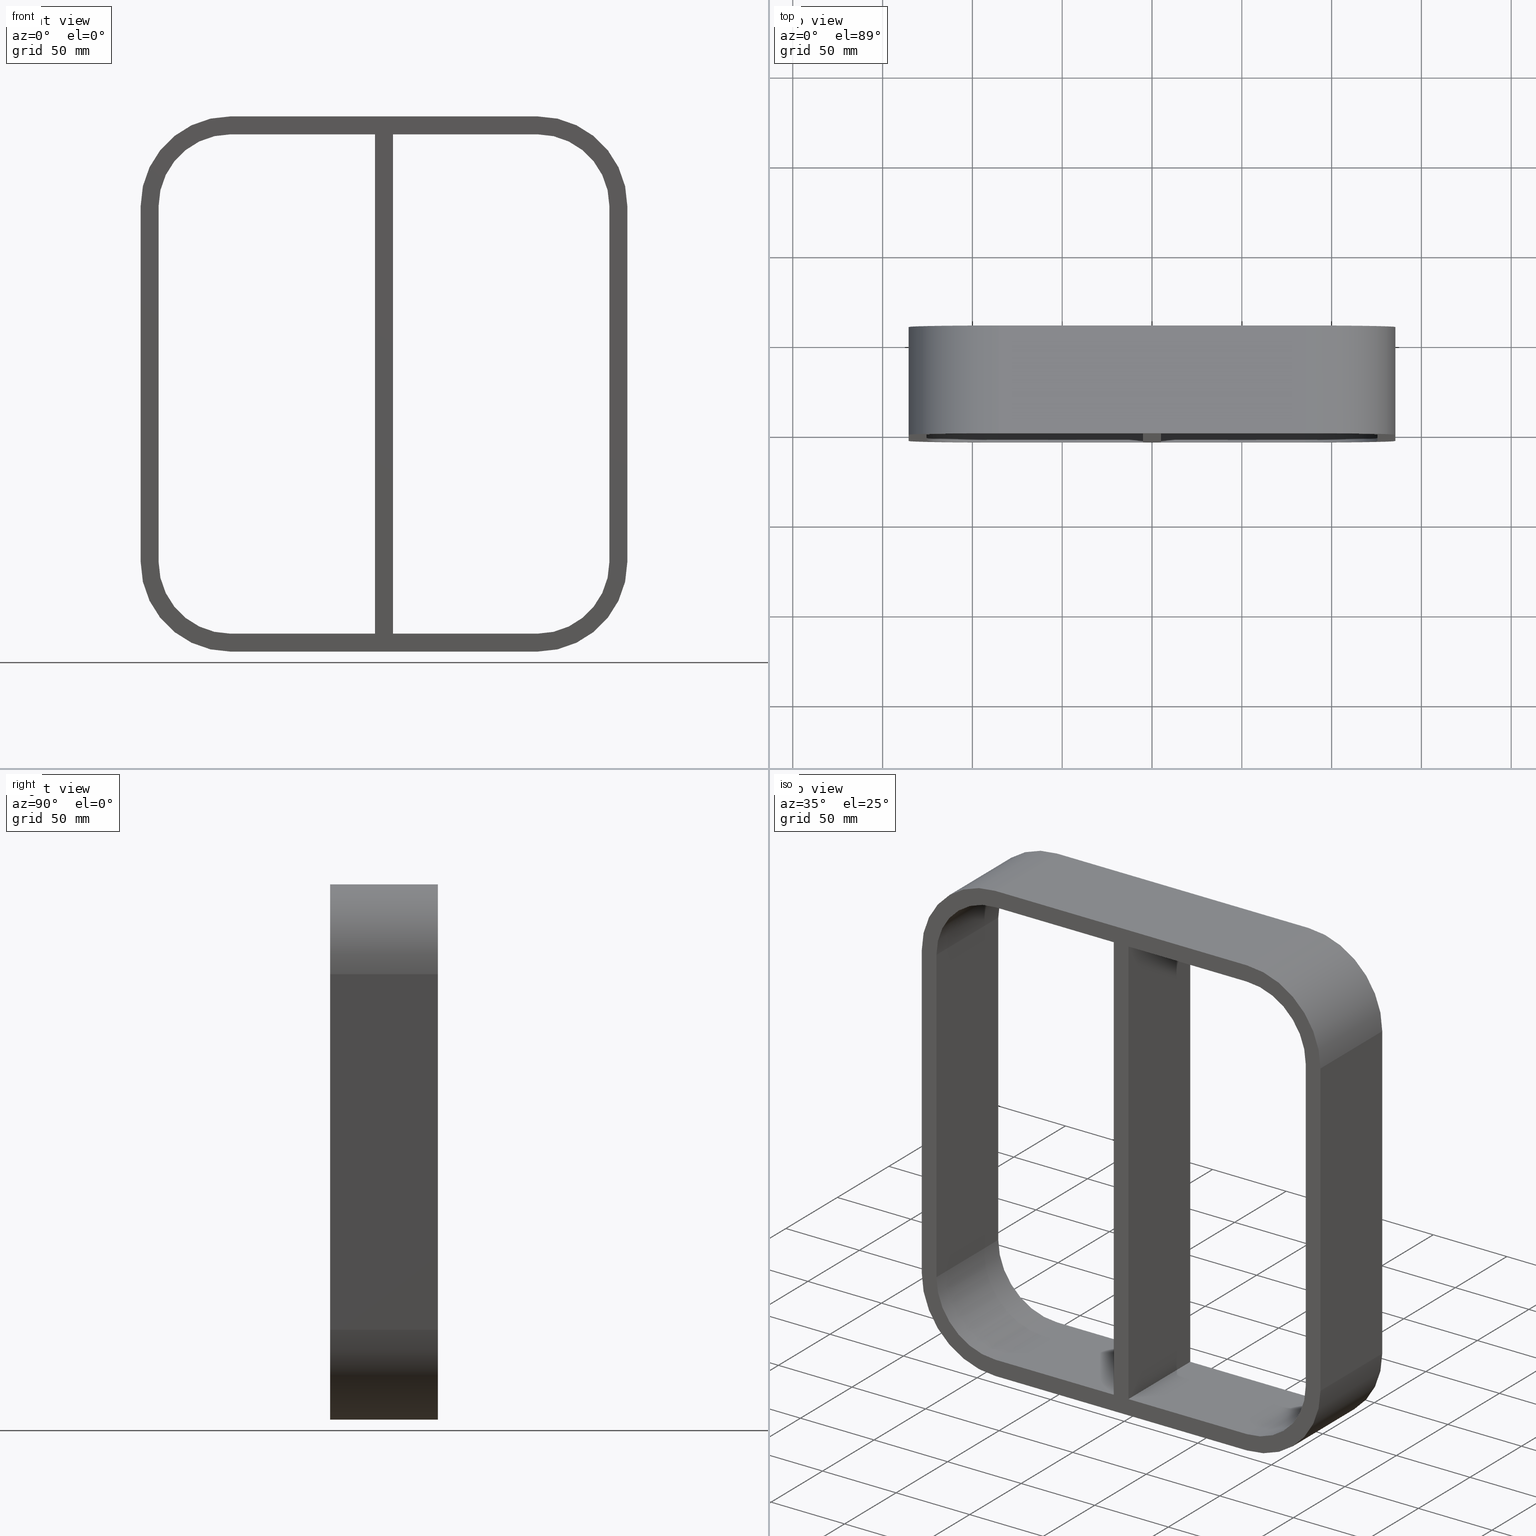
[diagram: canonical four-view strip — front | top / right | iso, engineering-drawing reading convention]
A machine part, canonical four-view strip (front | top / right | iso — engineering-drawing reading convention). The complete STEP part file that produces these views, byte-faithful:
ISO-10303-21;
HEADER;
/****************************************************************
 * Generated by software with PDElib inside                    *
 * PDElib Version v51a, created Wed 11/30/2011                  *
 * ITI Transcendata (http://www.transcendata.com/)              *
 ****************************************************************/
FILE_DESCRIPTION((''),'2;1');
FILE_NAME('N:\\Projects\\Ongoing_Projects\\12403 Transit Designer\\Product-data\\Product Data\\Transit designer Cad Generator\\CreatedFiles\\STEP\\SRCR40-8X2.stp','2014-10-31T13:07:12',(''),(''),'Autodesk Inventor 2013','Autodesk Inventor 2013','');
FILE_SCHEMA(('AUTOMOTIVE_DESIGN { 1 0 10303 214 1 1 1 1 }'));
ENDSEC;
DATA;
#5=APPLICATION_CONTEXT('automotive design');
#6=APPLICATION_PROTOCOL_DEFINITION('International Standard','automotive_design',2001,#5);
#7=PRODUCT_CONTEXT('',#5,'mechanical');
#8=PRODUCT('GH-ISO','GH-ISO',$,(#7));
#9=PRODUCT_RELATED_PRODUCT_CATEGORY('part',$,(#8));
#10=PRODUCT_DEFINITION_FORMATION('',$,#8);
#11=PRODUCT_DEFINITION_CONTEXT('part definition',#5,'design');
#12=PRODUCT_DEFINITION('',$,#10,#11);
#18=(NAMED_UNIT(*)PLANE_ANGLE_UNIT()SI_UNIT($,.RADIAN.));
#19=DIMENSIONAL_EXPONENTS(0.0,0.0,0.0,0.0,0.0,0.0,0.0);
#20=PLANE_ANGLE_MEASURE_WITH_UNIT(PLANE_ANGLE_MEASURE(0.0174532925),#18);
#24=(CONVERSION_BASED_UNIT('DEGREE',#20)NAMED_UNIT(#19)PLANE_ANGLE_UNIT());
#28=(NAMED_UNIT(*)SI_UNIT($,.STERADIAN.)SOLID_ANGLE_UNIT());
#32=(LENGTH_UNIT()NAMED_UNIT(*)SI_UNIT(.MILLI.,.METRE.));
#34=UNCERTAINTY_MEASURE_WITH_UNIT(LENGTH_MEASURE(0.01),#32,'DISTANCE_ACCURACY_VALUE','');
#36=(GEOMETRIC_REPRESENTATION_CONTEXT(3)GLOBAL_UNCERTAINTY_ASSIGNED_CONTEXT((#34))GLOBAL_UNIT_ASSIGNED_CONTEXT((#24,#28,#32))REPRESENTATION_CONTEXT('None','None'));
#37=AXIS2_PLACEMENT_3D('',#38,#39,#40);
#38=CARTESIAN_POINT('',(0.0,0.0,0.0));
#39=DIRECTION('',(0.0,0.0,1.0));
#40=DIRECTION('',(1.0,0.0,0.0));
#41=SHAPE_REPRESENTATION('',(#37),#36);
#42=PRODUCT_DEFINITION_SHAPE('','',#12);
#43=SHAPE_DEFINITION_REPRESENTATION(#42,#41);
#49=(NAMED_UNIT(*)PLANE_ANGLE_UNIT()SI_UNIT($,.RADIAN.));
#50=DIMENSIONAL_EXPONENTS(0.0,0.0,0.0,0.0,0.0,0.0,0.0);
#51=PLANE_ANGLE_MEASURE_WITH_UNIT(PLANE_ANGLE_MEASURE(0.0174532925),#49);
#55=(CONVERSION_BASED_UNIT('DEGREE',#51)NAMED_UNIT(#50)PLANE_ANGLE_UNIT());
#59=(NAMED_UNIT(*)SI_UNIT($,.STERADIAN.)SOLID_ANGLE_UNIT());
#63=(LENGTH_UNIT()NAMED_UNIT(*)SI_UNIT(.MILLI.,.METRE.));
#65=UNCERTAINTY_MEASURE_WITH_UNIT(LENGTH_MEASURE(0.000001),#63,'DISTANCE_ACCURACY_VALUE','');
#67=(GEOMETRIC_REPRESENTATION_CONTEXT(3)GLOBAL_UNCERTAINTY_ASSIGNED_CONTEXT((#65))GLOBAL_UNIT_ASSIGNED_CONTEXT((#55,#59,#63))REPRESENTATION_CONTEXT('','3D'));
#68=CARTESIAN_POINT('',(-5.000000000001439,-3.0,-139.0));
#69=DIRECTION('',(-1.0,0.0,0.0));
#70=DIRECTION('',(0.0,0.0,1.0));
#71=AXIS2_PLACEMENT_3D('',#68,#69,#70);
#72=PLANE('',#71);
#73=CARTESIAN_POINT('',(-5.000000000001439,-3.0,-139.0));
#74=VERTEX_POINT('',#73);
#75=CARTESIAN_POINT('',(-5.000000000001492,-3.0,139.0));
#76=VERTEX_POINT('',#75);
#77=CARTESIAN_POINT('',(-5.000000000001439,-3.0,-139.0));
#78=DIRECTION('',(0.0,0.0,1.0));
#79=VECTOR('',#78,278.0);
#80=LINE('',#77,#79);
#81=EDGE_CURVE('',#74,#76,#80,.T.);
#82=ORIENTED_EDGE('',*,*,#81,.T.);
#83=CARTESIAN_POINT('',(-5.000000000001492,57.0,139.0));
#84=VERTEX_POINT('',#83);
#85=CARTESIAN_POINT('',(-5.000000000001492,57.000000000000007,139.0));
#86=DIRECTION('',(0.0,-1.0,0.0));
#87=VECTOR('',#86,60.000000000000007);
#88=LINE('',#85,#87);
#89=EDGE_CURVE('',#84,#76,#88,.T.);
#90=ORIENTED_EDGE('',*,*,#89,.F.);
#91=CARTESIAN_POINT('',(-5.000000000001439,57.0,-139.0));
#92=VERTEX_POINT('',#91);
#93=CARTESIAN_POINT('',(-5.000000000001439,57.0,-139.0));
#94=DIRECTION('',(0.0,0.0,1.0));
#95=VECTOR('',#94,278.0);
#96=LINE('',#93,#95);
#97=EDGE_CURVE('',#92,#84,#96,.T.);
#98=ORIENTED_EDGE('',*,*,#97,.F.);
#99=CARTESIAN_POINT('',(-5.000000000001439,-3.0,-139.0));
#100=DIRECTION('',(0.0,1.0,0.0));
#101=VECTOR('',#100,60.000000000000007);
#102=LINE('',#99,#101);
#103=EDGE_CURVE('',#74,#92,#102,.T.);
#104=ORIENTED_EDGE('',*,*,#103,.F.);
#105=EDGE_LOOP('',(#82,#90,#98,#104));
#106=FACE_OUTER_BOUND('',#105,.T.);
#107=ADVANCED_FACE('',(#106),#72,.T.);
#108=CARTESIAN_POINT('',(5.0,-3.0,139.0));
#109=DIRECTION('',(1.0,0.0,0.0));
#110=DIRECTION('',(0.0,0.0,-1.0));
#111=AXIS2_PLACEMENT_3D('',#108,#109,#110);
#112=PLANE('',#111);
#113=CARTESIAN_POINT('',(5.0,-3.0,139.0));
#114=VERTEX_POINT('',#113);
#115=CARTESIAN_POINT('',(5.0,-3.0,-138.99999999998502));
#116=VERTEX_POINT('',#115);
#117=CARTESIAN_POINT('',(5.0,-3.0,139.0));
#118=DIRECTION('',(0.0,0.0,-1.0));
#119=VECTOR('',#118,277.99999999998499);
#120=LINE('',#117,#119);
#121=EDGE_CURVE('',#114,#116,#120,.T.);
#122=ORIENTED_EDGE('',*,*,#121,.T.);
#123=CARTESIAN_POINT('',(5.0,57.0,-138.99999999998502));
#124=VERTEX_POINT('',#123);
#125=CARTESIAN_POINT('',(5.0,57.000000000000007,-139.0));
#126=DIRECTION('',(0.0,-1.0,0.0));
#127=VECTOR('',#126,60.000000000000007);
#128=LINE('',#125,#127);
#129=EDGE_CURVE('',#124,#116,#128,.T.);
#130=ORIENTED_EDGE('',*,*,#129,.F.);
#131=CARTESIAN_POINT('',(5.0,57.0,139.0));
#132=VERTEX_POINT('',#131);
#133=CARTESIAN_POINT('',(5.0,57.0,139.0));
#134=DIRECTION('',(0.0,0.0,-1.0));
#135=VECTOR('',#134,277.99999999998499);
#136=LINE('',#133,#135);
#137=EDGE_CURVE('',#132,#124,#136,.T.);
#138=ORIENTED_EDGE('',*,*,#137,.F.);
#139=CARTESIAN_POINT('',(5.0,-3.0,139.0));
#140=DIRECTION('',(0.0,1.0,0.0));
#141=VECTOR('',#140,60.000000000000007);
#142=LINE('',#139,#141);
#143=EDGE_CURVE('',#114,#132,#142,.T.);
#144=ORIENTED_EDGE('',*,*,#143,.F.);
#145=EDGE_LOOP('',(#122,#130,#138,#144));
#146=FACE_OUTER_BOUND('',#145,.T.);
#147=ADVANCED_FACE('',(#146),#112,.T.);
#148=CARTESIAN_POINT('',(125.49999999999997,0.0,-139.0));
#149=DIRECTION('',(0.0,0.0,-1.0));
#150=DIRECTION('',(-1.0,0.0,0.0));
#151=AXIS2_PLACEMENT_3D('',#148,#149,#150);
#152=PLANE('',#151);
#153=ORIENTED_EDGE('',*,*,#103,.T.);
#154=CARTESIAN_POINT('',(-85.499999999999972,57.0,-139.0));
#155=VERTEX_POINT('',#154);
#156=CARTESIAN_POINT('',(-85.499999999999943,57.0,-139.0));
#157=DIRECTION('',(1.0,0.0,0.0));
#158=VECTOR('',#157,80.499999999998494);
#159=LINE('',#156,#158);
#160=EDGE_CURVE('',#155,#92,#159,.T.);
#161=ORIENTED_EDGE('',*,*,#160,.F.);
#162=CARTESIAN_POINT('',(-85.499999999999972,-3.0,-139.0));
#163=VERTEX_POINT('',#162);
#164=CARTESIAN_POINT('',(-85.499999999999972,-3.0,-139.0));
#165=DIRECTION('',(0.0,1.0,0.0));
#166=VECTOR('',#165,60.0);
#167=LINE('',#164,#166);
#168=EDGE_CURVE('',#163,#155,#167,.T.);
#169=ORIENTED_EDGE('',*,*,#168,.F.);
#170=CARTESIAN_POINT('',(-5.000000000001442,-3.0,-139.0));
#171=DIRECTION('',(-1.0,0.0,0.0));
#172=VECTOR('',#171,80.499999999998494);
#173=LINE('',#170,#172);
#174=EDGE_CURVE('',#74,#163,#173,.T.);
#175=ORIENTED_EDGE('',*,*,#174,.F.);
#176=EDGE_LOOP('',(#153,#161,#169,#175));
#177=FACE_OUTER_BOUND('',#176,.T.);
#178=ADVANCED_FACE('',(#177),#152,.F.);
#179=CARTESIAN_POINT('',(125.49999999999997,0.0,-139.0));
#180=DIRECTION('',(0.0,0.0,-1.0));
#181=DIRECTION('',(-1.0,0.0,0.0));
#182=AXIS2_PLACEMENT_3D('',#179,#180,#181);
#183=PLANE('',#182);
#184=ORIENTED_EDGE('',*,*,#129,.T.);
#185=CARTESIAN_POINT('',(85.499999999999972,-3.0,-139.0));
#186=VERTEX_POINT('',#185);
#187=CARTESIAN_POINT('',(85.499999999999972,-3.0,-139.0));
#188=DIRECTION('',(-1.0,0.0,0.0));
#189=VECTOR('',#188,80.499999999999972);
#190=LINE('',#187,#189);
#191=EDGE_CURVE('',#186,#116,#190,.T.);
#192=ORIENTED_EDGE('',*,*,#191,.F.);
#193=CARTESIAN_POINT('',(85.499999999999972,57.0,-139.0));
#194=VERTEX_POINT('',#193);
#195=CARTESIAN_POINT('',(85.499999999999972,57.0,-139.0));
#196=DIRECTION('',(0.0,-1.0,0.0));
#197=VECTOR('',#196,60.0);
#198=LINE('',#195,#197);
#199=EDGE_CURVE('',#194,#186,#198,.T.);
#200=ORIENTED_EDGE('',*,*,#199,.F.);
#201=CARTESIAN_POINT('',(5.0,57.0,-139.0));
#202=DIRECTION('',(1.0,0.0,0.0));
#203=VECTOR('',#202,80.499999999999972);
#204=LINE('',#201,#203);
#205=EDGE_CURVE('',#124,#194,#204,.T.);
#206=ORIENTED_EDGE('',*,*,#205,.F.);
#207=EDGE_LOOP('',(#184,#192,#200,#206));
#208=FACE_OUTER_BOUND('',#207,.T.);
#209=ADVANCED_FACE('',(#208),#183,.F.);
#210=CARTESIAN_POINT('',(-125.49999999999999,0.0,139.0));
#211=DIRECTION('',(0.0,0.0,1.0));
#212=DIRECTION('',(1.0,0.0,0.0));
#213=AXIS2_PLACEMENT_3D('',#210,#211,#212);
#214=PLANE('',#213);
#215=ORIENTED_EDGE('',*,*,#143,.T.);
#216=CARTESIAN_POINT('',(85.499999999999972,57.0,139.0));
#217=VERTEX_POINT('',#216);
#218=CARTESIAN_POINT('',(85.499999999999957,57.0,139.0));
#219=DIRECTION('',(-1.0,0.0,0.0));
#220=VECTOR('',#219,80.499999999999957);
#221=LINE('',#218,#220);
#222=EDGE_CURVE('',#217,#132,#221,.T.);
#223=ORIENTED_EDGE('',*,*,#222,.F.);
#224=CARTESIAN_POINT('',(85.499999999999972,-3.0,139.0));
#225=VERTEX_POINT('',#224);
#226=CARTESIAN_POINT('',(85.499999999999972,-3.0,139.0));
#227=DIRECTION('',(0.0,1.0,0.0));
#228=VECTOR('',#227,60.0);
#229=LINE('',#226,#228);
#230=EDGE_CURVE('',#225,#217,#229,.T.);
#231=ORIENTED_EDGE('',*,*,#230,.F.);
#232=CARTESIAN_POINT('',(5.0,-3.0,139.0));
#233=DIRECTION('',(1.0,0.0,0.0));
#234=VECTOR('',#233,80.499999999999957);
#235=LINE('',#232,#234);
#236=EDGE_CURVE('',#114,#225,#235,.T.);
#237=ORIENTED_EDGE('',*,*,#236,.F.);
#238=EDGE_LOOP('',(#215,#223,#231,#237));
#239=FACE_OUTER_BOUND('',#238,.T.);
#240=ADVANCED_FACE('',(#239),#214,.F.);
#241=CARTESIAN_POINT('',(-125.49999999999999,0.0,139.0));
#242=DIRECTION('',(0.0,0.0,1.0));
#243=DIRECTION('',(1.0,0.0,0.0));
#244=AXIS2_PLACEMENT_3D('',#241,#242,#243);
#245=PLANE('',#244);
#246=ORIENTED_EDGE('',*,*,#89,.T.);
#247=CARTESIAN_POINT('',(-85.499999999999986,-3.0,139.0));
#248=VERTEX_POINT('',#247);
#249=CARTESIAN_POINT('',(-85.499999999999986,-3.0,139.0));
#250=DIRECTION('',(1.0,0.0,0.0));
#251=VECTOR('',#250,80.499999999998494);
#252=LINE('',#249,#251);
#253=EDGE_CURVE('',#248,#76,#252,.T.);
#254=ORIENTED_EDGE('',*,*,#253,.F.);
#255=CARTESIAN_POINT('',(-85.499999999999986,57.0,139.0));
#256=VERTEX_POINT('',#255);
#257=CARTESIAN_POINT('',(-85.499999999999986,57.0,139.0));
#258=DIRECTION('',(0.0,-1.0,0.0));
#259=VECTOR('',#258,60.0);
#260=LINE('',#257,#259);
#261=EDGE_CURVE('',#256,#248,#260,.T.);
#262=ORIENTED_EDGE('',*,*,#261,.F.);
#263=CARTESIAN_POINT('',(-5.000000000001492,57.0,139.0));
#264=DIRECTION('',(-1.0,0.0,0.0));
#265=VECTOR('',#264,80.499999999998494);
#266=LINE('',#263,#265);
#267=EDGE_CURVE('',#84,#256,#266,.T.);
#268=ORIENTED_EDGE('',*,*,#267,.F.);
#269=EDGE_LOOP('',(#246,#254,#262,#268));
#270=FACE_OUTER_BOUND('',#269,.T.);
#271=ADVANCED_FACE('',(#270),#245,.F.);
#272=CARTESIAN_POINT('',(85.500000000000028,0.0,-98.999999999999986));
#273=DIRECTION('',(0.0,1.0,0.0));
#274=DIRECTION('',(0.707106781186547,0.0,-0.707106781186547));
#275=AXIS2_PLACEMENT_3D('',#272,#273,#274);
#276=CYLINDRICAL_SURFACE('',#275,49.999999999999993);
#277=CARTESIAN_POINT('',(85.500000000000028,57.0,-149.0));
#278=VERTEX_POINT('',#277);
#279=CARTESIAN_POINT('',(135.50000000000003,57.0,-98.999999999999986));
#280=VERTEX_POINT('',#279);
#281=CARTESIAN_POINT('',(85.500000000000028,57.0,-98.999999999999986));
#282=DIRECTION('',(0.0,-1.0,0.0));
#283=DIRECTION('',(0.707106781186547,0.0,-0.707106781186547));
#284=AXIS2_PLACEMENT_3D('',#281,#282,#283);
#285=CIRCLE('',#284,49.999999999999986);
#286=EDGE_CURVE('',#278,#280,#285,.T.);
#287=ORIENTED_EDGE('',*,*,#286,.T.);
#288=CARTESIAN_POINT('',(135.50000000000003,-3.0,-98.999999999999986));
#289=VERTEX_POINT('',#288);
#290=CARTESIAN_POINT('',(135.50000000000003,57.0,-98.999999999999986));
#291=DIRECTION('',(0.0,-1.0,0.0));
#292=VECTOR('',#291,60.0);
#293=LINE('',#290,#292);
#294=EDGE_CURVE('',#280,#289,#293,.T.);
#295=ORIENTED_EDGE('',*,*,#294,.T.);
#296=CARTESIAN_POINT('',(85.500000000000028,-3.0,-149.0));
#297=VERTEX_POINT('',#296);
#298=CARTESIAN_POINT('',(85.500000000000028,-3.0,-98.999999999999986));
#299=DIRECTION('',(0.0,1.0,0.0));
#300=DIRECTION('',(0.707106781186547,0.0,-0.707106781186547));
#301=AXIS2_PLACEMENT_3D('',#298,#299,#300);
#302=CIRCLE('',#301,49.999999999999986);
#303=EDGE_CURVE('',#289,#297,#302,.T.);
#304=ORIENTED_EDGE('',*,*,#303,.T.);
#305=CARTESIAN_POINT('',(85.500000000000028,-3.0,-149.0));
#306=DIRECTION('',(0.0,1.0,0.0));
#307=VECTOR('',#306,60.0);
#308=LINE('',#305,#307);
#309=EDGE_CURVE('',#297,#278,#308,.T.);
#310=ORIENTED_EDGE('',*,*,#309,.T.);
#311=EDGE_LOOP('',(#287,#295,#304,#310));
#312=FACE_OUTER_BOUND('',#311,.T.);
#313=ADVANCED_FACE('',(#312),#276,.T.);
#314=CARTESIAN_POINT('',(1.921525E-014,-3.0,0.0));
#315=DIRECTION('',(0.0,1.0,0.0));
#316=DIRECTION('',(0.0,0.0,1.0));
#317=AXIS2_PLACEMENT_3D('',#314,#315,#316);
#318=PLANE('',#317);
#319=ORIENTED_EDGE('',*,*,#303,.F.);
#320=CARTESIAN_POINT('',(135.50000000000003,-3.0,98.999999999999986));
#321=VERTEX_POINT('',#320);
#322=CARTESIAN_POINT('',(135.50000000000003,-3.0,-98.999999999999972));
#323=DIRECTION('',(0.0,0.0,1.0));
#324=VECTOR('',#323,197.99999999999997);
#325=LINE('',#322,#324);
#326=EDGE_CURVE('',#289,#321,#325,.T.);
#327=ORIENTED_EDGE('',*,*,#326,.T.);
#328=CARTESIAN_POINT('',(85.500000000000028,-3.0,149.0));
#329=VERTEX_POINT('',#328);
#330=CARTESIAN_POINT('',(85.500000000000028,-3.0,98.999999999999986));
#331=DIRECTION('',(0.0,1.0,0.0));
#332=DIRECTION('',(0.707106781186547,0.0,0.707106781186547));
#333=AXIS2_PLACEMENT_3D('',#330,#331,#332);
#334=CIRCLE('',#333,49.999999999999986);
#335=EDGE_CURVE('',#329,#321,#334,.T.);
#336=ORIENTED_EDGE('',*,*,#335,.F.);
#337=CARTESIAN_POINT('',(-85.499999999999986,-3.0,149.0));
#338=VERTEX_POINT('',#337);
#339=CARTESIAN_POINT('',(85.5,-3.0,149.0));
#340=DIRECTION('',(-1.0,0.0,0.0));
#341=VECTOR('',#340,171.0);
#342=LINE('',#339,#341);
#343=EDGE_CURVE('',#329,#338,#342,.T.);
#344=ORIENTED_EDGE('',*,*,#343,.T.);
#345=CARTESIAN_POINT('',(-135.5,-3.0,98.999999999999986));
#346=VERTEX_POINT('',#345);
#347=CARTESIAN_POINT('',(-85.499999999999986,-3.0,98.999999999999986));
#348=DIRECTION('',(0.0,1.0,0.0));
#349=DIRECTION('',(-0.707106781186547,0.0,0.707106781186547));
#350=AXIS2_PLACEMENT_3D('',#347,#348,#349);
#351=CIRCLE('',#350,49.999999999999986);
#352=EDGE_CURVE('',#346,#338,#351,.T.);
#353=ORIENTED_EDGE('',*,*,#352,.F.);
#354=CARTESIAN_POINT('',(-135.5,-3.0,-98.999999999999986));
#355=VERTEX_POINT('',#354);
#356=CARTESIAN_POINT('',(-135.5,-3.0,98.999999999999972));
#357=DIRECTION('',(0.0,0.0,-1.0));
#358=VECTOR('',#357,197.99999999999997);
#359=LINE('',#356,#358);
#360=EDGE_CURVE('',#346,#355,#359,.T.);
#361=ORIENTED_EDGE('',*,*,#360,.T.);
#362=CARTESIAN_POINT('',(-85.499999999999986,-3.0,-149.0));
#363=VERTEX_POINT('',#362);
#364=CARTESIAN_POINT('',(-85.499999999999986,-3.0,-98.999999999999986));
#365=DIRECTION('',(0.0,1.0,0.0));
#366=DIRECTION('',(-0.707106781186547,0.0,-0.707106781186547));
#367=AXIS2_PLACEMENT_3D('',#364,#365,#366);
#368=CIRCLE('',#367,49.999999999999986);
#369=EDGE_CURVE('',#363,#355,#368,.T.);
#370=ORIENTED_EDGE('',*,*,#369,.F.);
#371=CARTESIAN_POINT('',(-85.499999999999972,-3.0,-149.0));
#372=DIRECTION('',(1.0,0.0,0.0));
#373=VECTOR('',#372,171.0);
#374=LINE('',#371,#373);
#375=EDGE_CURVE('',#363,#297,#374,.T.);
#376=ORIENTED_EDGE('',*,*,#375,.T.);
#377=EDGE_LOOP('',(#319,#327,#336,#344,#353,#361,#370,#376));
#378=FACE_OUTER_BOUND('',#377,.T.);
#379=ORIENTED_EDGE('',*,*,#174,.T.);
#380=CARTESIAN_POINT('',(-125.49999999999999,-3.0,-98.999999999999986));
#381=VERTEX_POINT('',#380);
#382=CARTESIAN_POINT('',(-85.499999999999972,-3.0,-98.999999999999986));
#383=DIRECTION('',(0.0,-1.0,0.0));
#384=DIRECTION('',(-0.707106781186547,0.0,-0.707106781186547));
#385=AXIS2_PLACEMENT_3D('',#382,#383,#384);
#386=CIRCLE('',#385,39.999999999999993);
#387=EDGE_CURVE('',#381,#163,#386,.T.);
#388=ORIENTED_EDGE('',*,*,#387,.F.);
#389=CARTESIAN_POINT('',(-125.49999999999999,-3.0,98.999999999999986));
#390=VERTEX_POINT('',#389);
#391=CARTESIAN_POINT('',(-125.49999999999999,-3.0,-99.0));
#392=DIRECTION('',(0.0,0.0,1.0));
#393=VECTOR('',#392,197.99999999999997);
#394=LINE('',#391,#393);
#395=EDGE_CURVE('',#381,#390,#394,.T.);
#396=ORIENTED_EDGE('',*,*,#395,.T.);
#397=CARTESIAN_POINT('',(-85.499999999999986,-3.0,98.999999999999986));
#398=DIRECTION('',(0.0,-1.0,0.0));
#399=DIRECTION('',(-0.707106781186547,0.0,0.707106781186547));
#400=AXIS2_PLACEMENT_3D('',#397,#398,#399);
#401=CIRCLE('',#400,39.999999999999993);
#402=EDGE_CURVE('',#248,#390,#401,.T.);
#403=ORIENTED_EDGE('',*,*,#402,.F.);
#404=ORIENTED_EDGE('',*,*,#253,.T.);
#405=ORIENTED_EDGE('',*,*,#81,.F.);
#406=EDGE_LOOP('',(#379,#388,#396,#403,#404,#405));
#407=FACE_BOUND('',#406,.T.);
#408=ORIENTED_EDGE('',*,*,#121,.F.);
#409=ORIENTED_EDGE('',*,*,#236,.T.);
#410=CARTESIAN_POINT('',(125.49999999999997,-3.0,98.999999999999986));
#411=VERTEX_POINT('',#410);
#412=CARTESIAN_POINT('',(85.499999999999972,-3.0,98.999999999999986));
#413=DIRECTION('',(0.0,-1.0,0.0));
#414=DIRECTION('',(0.707106781186547,0.0,0.707106781186547));
#415=AXIS2_PLACEMENT_3D('',#412,#413,#414);
#416=CIRCLE('',#415,39.999999999999993);
#417=EDGE_CURVE('',#411,#225,#416,.T.);
#418=ORIENTED_EDGE('',*,*,#417,.F.);
#419=CARTESIAN_POINT('',(125.49999999999997,-3.0,-98.999999999999986));
#420=VERTEX_POINT('',#419);
#421=CARTESIAN_POINT('',(125.49999999999997,-3.0,99.0));
#422=DIRECTION('',(0.0,0.0,-1.0));
#423=VECTOR('',#422,197.99999999999997);
#424=LINE('',#421,#423);
#425=EDGE_CURVE('',#411,#420,#424,.T.);
#426=ORIENTED_EDGE('',*,*,#425,.T.);
#427=CARTESIAN_POINT('',(85.499999999999972,-3.0,-98.999999999999986));
#428=DIRECTION('',(0.0,-1.0,0.0));
#429=DIRECTION('',(0.707106781186547,0.0,-0.707106781186547));
#430=AXIS2_PLACEMENT_3D('',#427,#428,#429);
#431=CIRCLE('',#430,39.999999999999993);
#432=EDGE_CURVE('',#186,#420,#431,.T.);
#433=ORIENTED_EDGE('',*,*,#432,.F.);
#434=ORIENTED_EDGE('',*,*,#191,.T.);
#435=EDGE_LOOP('',(#408,#409,#418,#426,#433,#434));
#436=FACE_BOUND('',#435,.T.);
#437=ADVANCED_FACE('',(#378,#407,#436),#318,.F.);
#438=CARTESIAN_POINT('',(135.50000000000003,0.0,149.0));
#439=DIRECTION('',(1.0,0.0,0.0));
#440=DIRECTION('',(0.0,0.0,-1.0));
#441=AXIS2_PLACEMENT_3D('',#438,#439,#440);
#442=PLANE('',#441);
#443=ORIENTED_EDGE('',*,*,#294,.F.);
#444=CARTESIAN_POINT('',(135.50000000000003,57.0,98.999999999999986));
#445=VERTEX_POINT('',#444);
#446=CARTESIAN_POINT('',(135.50000000000003,57.0,99.0));
#447=DIRECTION('',(0.0,0.0,-1.0));
#448=VECTOR('',#447,197.99999999999997);
#449=LINE('',#446,#448);
#450=EDGE_CURVE('',#445,#280,#449,.T.);
#451=ORIENTED_EDGE('',*,*,#450,.F.);
#452=CARTESIAN_POINT('',(135.50000000000003,-3.0,98.999999999999986));
#453=DIRECTION('',(0.0,1.0,0.0));
#454=VECTOR('',#453,60.0);
#455=LINE('',#452,#454);
#456=EDGE_CURVE('',#321,#445,#455,.T.);
#457=ORIENTED_EDGE('',*,*,#456,.F.);
#458=ORIENTED_EDGE('',*,*,#326,.F.);
#459=EDGE_LOOP('',(#443,#451,#457,#458));
#460=FACE_OUTER_BOUND('',#459,.T.);
#461=ADVANCED_FACE('',(#460),#442,.T.);
#462=CARTESIAN_POINT('',(85.500000000000028,0.0,98.999999999999986));
#463=DIRECTION('',(0.0,-1.0,0.0));
#464=DIRECTION('',(0.707106781186547,0.0,0.707106781186547));
#465=AXIS2_PLACEMENT_3D('',#462,#463,#464);
#466=CYLINDRICAL_SURFACE('',#465,49.999999999999993);
#467=ORIENTED_EDGE('',*,*,#335,.T.);
#468=ORIENTED_EDGE('',*,*,#456,.T.);
#469=CARTESIAN_POINT('',(85.500000000000028,57.0,149.0));
#470=VERTEX_POINT('',#469);
#471=CARTESIAN_POINT('',(85.500000000000028,57.0,98.999999999999986));
#472=DIRECTION('',(0.0,-1.0,0.0));
#473=DIRECTION('',(0.707106781186547,0.0,0.707106781186547));
#474=AXIS2_PLACEMENT_3D('',#471,#472,#473);
#475=CIRCLE('',#474,49.999999999999986);
#476=EDGE_CURVE('',#445,#470,#475,.T.);
#477=ORIENTED_EDGE('',*,*,#476,.T.);
#478=CARTESIAN_POINT('',(85.500000000000028,57.0,149.0));
#479=DIRECTION('',(0.0,-1.0,0.0));
#480=VECTOR('',#479,60.0);
#481=LINE('',#478,#480);
#482=EDGE_CURVE('',#470,#329,#481,.T.);
#483=ORIENTED_EDGE('',*,*,#482,.T.);
#484=EDGE_LOOP('',(#467,#468,#477,#483));
#485=FACE_OUTER_BOUND('',#484,.T.);
#486=ADVANCED_FACE('',(#485),#466,.T.);
#487=CARTESIAN_POINT('',(-85.499999999999986,0.0,-98.999999999999986));
#488=DIRECTION('',(0.0,1.0,0.0));
#489=DIRECTION('',(-0.707106781186547,0.0,-0.707106781186547));
#490=AXIS2_PLACEMENT_3D('',#487,#488,#489);
#491=CYLINDRICAL_SURFACE('',#490,49.999999999999993);
#492=CARTESIAN_POINT('',(-135.5,57.0,-98.999999999999986));
#493=VERTEX_POINT('',#492);
#494=CARTESIAN_POINT('',(-85.499999999999986,57.0,-149.0));
#495=VERTEX_POINT('',#494);
#496=CARTESIAN_POINT('',(-85.499999999999986,57.0,-98.999999999999986));
#497=DIRECTION('',(0.0,-1.0,0.0));
#498=DIRECTION('',(-0.707106781186547,0.0,-0.707106781186547));
#499=AXIS2_PLACEMENT_3D('',#496,#497,#498);
#500=CIRCLE('',#499,49.999999999999986);
#501=EDGE_CURVE('',#493,#495,#500,.T.);
#502=ORIENTED_EDGE('',*,*,#501,.T.);
#503=CARTESIAN_POINT('',(-85.499999999999986,57.0,-149.0));
#504=DIRECTION('',(0.0,-1.0,0.0));
#505=VECTOR('',#504,60.0);
#506=LINE('',#503,#505);
#507=EDGE_CURVE('',#495,#363,#506,.T.);
#508=ORIENTED_EDGE('',*,*,#507,.T.);
#509=ORIENTED_EDGE('',*,*,#369,.T.);
#510=CARTESIAN_POINT('',(-135.5,-3.0,-98.999999999999986));
#511=DIRECTION('',(0.0,1.0,0.0));
#512=VECTOR('',#511,60.0);
#513=LINE('',#510,#512);
#514=EDGE_CURVE('',#355,#493,#513,.T.);
#515=ORIENTED_EDGE('',*,*,#514,.T.);
#516=EDGE_LOOP('',(#502,#508,#509,#515));
#517=FACE_OUTER_BOUND('',#516,.T.);
#518=ADVANCED_FACE('',(#517),#491,.T.);
#519=CARTESIAN_POINT('',(-135.5,0.0,-149.0));
#520=DIRECTION('',(-1.0,0.0,0.0));
#521=DIRECTION('',(0.0,0.0,1.0));
#522=AXIS2_PLACEMENT_3D('',#519,#520,#521);
#523=PLANE('',#522);
#524=ORIENTED_EDGE('',*,*,#514,.F.);
#525=ORIENTED_EDGE('',*,*,#360,.F.);
#526=CARTESIAN_POINT('',(-135.5,57.0,98.999999999999986));
#527=VERTEX_POINT('',#526);
#528=CARTESIAN_POINT('',(-135.5,57.0,98.999999999999986));
#529=DIRECTION('',(0.0,-1.0,0.0));
#530=VECTOR('',#529,60.0);
#531=LINE('',#528,#530);
#532=EDGE_CURVE('',#527,#346,#531,.T.);
#533=ORIENTED_EDGE('',*,*,#532,.F.);
#534=CARTESIAN_POINT('',(-135.5,57.0,-99.0));
#535=DIRECTION('',(0.0,0.0,1.0));
#536=VECTOR('',#535,197.99999999999997);
#537=LINE('',#534,#536);
#538=EDGE_CURVE('',#493,#527,#537,.T.);
#539=ORIENTED_EDGE('',*,*,#538,.F.);
#540=EDGE_LOOP('',(#524,#525,#533,#539));
#541=FACE_OUTER_BOUND('',#540,.T.);
#542=ADVANCED_FACE('',(#541),#523,.T.);
#543=CARTESIAN_POINT('',(-85.499999999999986,0.0,98.999999999999986));
#544=DIRECTION('',(0.0,1.0,0.0));
#545=DIRECTION('',(-0.707106781186547,0.0,0.707106781186547));
#546=AXIS2_PLACEMENT_3D('',#543,#544,#545);
#547=CYLINDRICAL_SURFACE('',#546,49.999999999999993);
#548=CARTESIAN_POINT('',(-85.499999999999986,57.0,149.0));
#549=VERTEX_POINT('',#548);
#550=CARTESIAN_POINT('',(-85.499999999999986,57.0,98.999999999999986));
#551=DIRECTION('',(0.0,-1.0,0.0));
#552=DIRECTION('',(-0.707106781186547,0.0,0.707106781186547));
#553=AXIS2_PLACEMENT_3D('',#550,#551,#552);
#554=CIRCLE('',#553,49.999999999999986);
#555=EDGE_CURVE('',#549,#527,#554,.T.);
#556=ORIENTED_EDGE('',*,*,#555,.T.);
#557=ORIENTED_EDGE('',*,*,#532,.T.);
#558=ORIENTED_EDGE('',*,*,#352,.T.);
#559=CARTESIAN_POINT('',(-85.499999999999986,-3.0,149.0));
#560=DIRECTION('',(0.0,1.0,0.0));
#561=VECTOR('',#560,60.0);
#562=LINE('',#559,#561);
#563=EDGE_CURVE('',#338,#549,#562,.T.);
#564=ORIENTED_EDGE('',*,*,#563,.T.);
#565=EDGE_LOOP('',(#556,#557,#558,#564));
#566=FACE_OUTER_BOUND('',#565,.T.);
#567=ADVANCED_FACE('',(#566),#547,.T.);
#568=CARTESIAN_POINT('',(-135.5,0.0,149.0));
#569=DIRECTION('',(0.0,0.0,1.0));
#570=DIRECTION('',(1.0,0.0,0.0));
#571=AXIS2_PLACEMENT_3D('',#568,#569,#570);
#572=PLANE('',#571);
#573=ORIENTED_EDGE('',*,*,#482,.F.);
#574=CARTESIAN_POINT('',(-85.5,57.0,149.0));
#575=DIRECTION('',(1.0,0.0,0.0));
#576=VECTOR('',#575,171.0);
#577=LINE('',#574,#576);
#578=EDGE_CURVE('',#549,#470,#577,.T.);
#579=ORIENTED_EDGE('',*,*,#578,.F.);
#580=ORIENTED_EDGE('',*,*,#563,.F.);
#581=ORIENTED_EDGE('',*,*,#343,.F.);
#582=EDGE_LOOP('',(#573,#579,#580,#581));
#583=FACE_OUTER_BOUND('',#582,.T.);
#584=ADVANCED_FACE('',(#583),#572,.T.);
#585=CARTESIAN_POINT('',(-85.499999999999986,0.0,98.999999999999986));
#586=DIRECTION('',(0.0,1.0,0.0));
#587=DIRECTION('',(-0.707106781186547,0.0,0.707106781186547));
#588=AXIS2_PLACEMENT_3D('',#585,#586,#587);
#589=CYLINDRICAL_SURFACE('',#588,40.0);
#590=ORIENTED_EDGE('',*,*,#402,.T.);
#591=CARTESIAN_POINT('',(-125.49999999999999,57.0,98.999999999999986));
#592=VERTEX_POINT('',#591);
#593=CARTESIAN_POINT('',(-125.49999999999999,-3.0,98.999999999999986));
#594=DIRECTION('',(0.0,1.0,0.0));
#595=VECTOR('',#594,60.0);
#596=LINE('',#593,#595);
#597=EDGE_CURVE('',#390,#592,#596,.T.);
#598=ORIENTED_EDGE('',*,*,#597,.T.);
#599=CARTESIAN_POINT('',(-85.499999999999986,57.0,98.999999999999986));
#600=DIRECTION('',(0.0,1.0,0.0));
#601=DIRECTION('',(-0.707106781186547,0.0,0.707106781186547));
#602=AXIS2_PLACEMENT_3D('',#599,#600,#601);
#603=CIRCLE('',#602,39.999999999999993);
#604=EDGE_CURVE('',#592,#256,#603,.T.);
#605=ORIENTED_EDGE('',*,*,#604,.T.);
#606=ORIENTED_EDGE('',*,*,#261,.T.);
#607=EDGE_LOOP('',(#590,#598,#605,#606));
#608=FACE_OUTER_BOUND('',#607,.T.);
#609=ADVANCED_FACE('',(#608),#589,.F.);
#610=CARTESIAN_POINT('',(-125.49999999999999,0.0,-139.0));
#611=DIRECTION('',(-1.0,0.0,0.0));
#612=DIRECTION('',(0.0,0.0,1.0));
#613=AXIS2_PLACEMENT_3D('',#610,#611,#612);
#614=PLANE('',#613);
#615=ORIENTED_EDGE('',*,*,#597,.F.);
#616=ORIENTED_EDGE('',*,*,#395,.F.);
#617=CARTESIAN_POINT('',(-125.49999999999999,57.0,-98.999999999999986));
#618=VERTEX_POINT('',#617);
#619=CARTESIAN_POINT('',(-125.49999999999999,57.0,-98.999999999999986));
#620=DIRECTION('',(0.0,-1.0,0.0));
#621=VECTOR('',#620,60.0);
#622=LINE('',#619,#621);
#623=EDGE_CURVE('',#618,#381,#622,.T.);
#624=ORIENTED_EDGE('',*,*,#623,.F.);
#625=CARTESIAN_POINT('',(-125.49999999999999,57.0,98.999999999999972));
#626=DIRECTION('',(0.0,0.0,-1.0));
#627=VECTOR('',#626,197.99999999999997);
#628=LINE('',#625,#627);
#629=EDGE_CURVE('',#592,#618,#628,.T.);
#630=ORIENTED_EDGE('',*,*,#629,.F.);
#631=EDGE_LOOP('',(#615,#616,#624,#630));
#632=FACE_OUTER_BOUND('',#631,.T.);
#633=ADVANCED_FACE('',(#632),#614,.F.);
#634=CARTESIAN_POINT('',(85.499999999999972,0.0,98.999999999999986));
#635=DIRECTION('',(0.0,1.0,0.0));
#636=DIRECTION('',(0.707106781186547,0.0,0.707106781186547));
#637=AXIS2_PLACEMENT_3D('',#634,#635,#636);
#638=CYLINDRICAL_SURFACE('',#637,40.0);
#639=ORIENTED_EDGE('',*,*,#417,.T.);
#640=ORIENTED_EDGE('',*,*,#230,.T.);
#641=CARTESIAN_POINT('',(125.49999999999997,57.0,98.999999999999986));
#642=VERTEX_POINT('',#641);
#643=CARTESIAN_POINT('',(85.499999999999972,57.0,98.999999999999986));
#644=DIRECTION('',(0.0,1.0,0.0));
#645=DIRECTION('',(0.707106781186547,0.0,0.707106781186547));
#646=AXIS2_PLACEMENT_3D('',#643,#644,#645);
#647=CIRCLE('',#646,39.999999999999993);
#648=EDGE_CURVE('',#217,#642,#647,.T.);
#649=ORIENTED_EDGE('',*,*,#648,.T.);
#650=CARTESIAN_POINT('',(125.49999999999997,57.0,98.999999999999986));
#651=DIRECTION('',(0.0,-1.0,0.0));
#652=VECTOR('',#651,60.0);
#653=LINE('',#650,#652);
#654=EDGE_CURVE('',#642,#411,#653,.T.);
#655=ORIENTED_EDGE('',*,*,#654,.T.);
#656=EDGE_LOOP('',(#639,#640,#649,#655));
#657=FACE_OUTER_BOUND('',#656,.T.);
#658=ADVANCED_FACE('',(#657),#638,.F.);
#659=CARTESIAN_POINT('',(-85.499999999999972,0.0,-98.999999999999986));
#660=DIRECTION('',(0.0,1.0,0.0));
#661=DIRECTION('',(-0.707106781186547,0.0,-0.707106781186547));
#662=AXIS2_PLACEMENT_3D('',#659,#660,#661);
#663=CYLINDRICAL_SURFACE('',#662,40.0);
#664=ORIENTED_EDGE('',*,*,#387,.T.);
#665=ORIENTED_EDGE('',*,*,#168,.T.);
#666=CARTESIAN_POINT('',(-85.499999999999972,57.0,-98.999999999999986));
#667=DIRECTION('',(0.0,1.0,0.0));
#668=DIRECTION('',(-0.707106781186547,0.0,-0.707106781186547));
#669=AXIS2_PLACEMENT_3D('',#666,#667,#668);
#670=CIRCLE('',#669,39.999999999999993);
#671=EDGE_CURVE('',#155,#618,#670,.T.);
#672=ORIENTED_EDGE('',*,*,#671,.T.);
#673=ORIENTED_EDGE('',*,*,#623,.T.);
#674=EDGE_LOOP('',(#664,#665,#672,#673));
#675=FACE_OUTER_BOUND('',#674,.T.);
#676=ADVANCED_FACE('',(#675),#663,.F.);
#677=CARTESIAN_POINT('',(85.499999999999972,0.0,-98.999999999999986));
#678=DIRECTION('',(0.0,-1.0,0.0));
#679=DIRECTION('',(0.707106781186547,0.0,-0.707106781186547));
#680=AXIS2_PLACEMENT_3D('',#677,#678,#679);
#681=CYLINDRICAL_SURFACE('',#680,40.0);
#682=CARTESIAN_POINT('',(125.49999999999997,57.0,-98.999999999999986));
#683=VERTEX_POINT('',#682);
#684=CARTESIAN_POINT('',(85.499999999999972,57.0,-98.999999999999986));
#685=DIRECTION('',(0.0,1.0,0.0));
#686=DIRECTION('',(0.707106781186547,0.0,-0.707106781186547));
#687=AXIS2_PLACEMENT_3D('',#684,#685,#686);
#688=CIRCLE('',#687,39.999999999999993);
#689=EDGE_CURVE('',#683,#194,#688,.T.);
#690=ORIENTED_EDGE('',*,*,#689,.T.);
#691=ORIENTED_EDGE('',*,*,#199,.T.);
#692=ORIENTED_EDGE('',*,*,#432,.T.);
#693=CARTESIAN_POINT('',(125.49999999999997,-3.0,-98.999999999999986));
#694=DIRECTION('',(0.0,1.0,0.0));
#695=VECTOR('',#694,60.0);
#696=LINE('',#693,#695);
#697=EDGE_CURVE('',#420,#683,#696,.T.);
#698=ORIENTED_EDGE('',*,*,#697,.T.);
#699=EDGE_LOOP('',(#690,#691,#692,#698));
#700=FACE_OUTER_BOUND('',#699,.T.);
#701=ADVANCED_FACE('',(#700),#681,.F.);
#702=CARTESIAN_POINT('',(125.49999999999997,0.0,139.0));
#703=DIRECTION('',(1.0,0.0,0.0));
#704=DIRECTION('',(0.0,0.0,-1.0));
#705=AXIS2_PLACEMENT_3D('',#702,#703,#704);
#706=PLANE('',#705);
#707=ORIENTED_EDGE('',*,*,#654,.F.);
#708=CARTESIAN_POINT('',(125.49999999999997,57.0,-98.999999999999972));
#709=DIRECTION('',(0.0,0.0,1.0));
#710=VECTOR('',#709,197.99999999999997);
#711=LINE('',#708,#710);
#712=EDGE_CURVE('',#683,#642,#711,.T.);
#713=ORIENTED_EDGE('',*,*,#712,.F.);
#714=ORIENTED_EDGE('',*,*,#697,.F.);
#715=ORIENTED_EDGE('',*,*,#425,.F.);
#716=EDGE_LOOP('',(#707,#713,#714,#715));
#717=FACE_OUTER_BOUND('',#716,.T.);
#718=ADVANCED_FACE('',(#717),#706,.F.);
#719=CARTESIAN_POINT('',(135.50000000000003,0.0,-149.0));
#720=DIRECTION('',(0.0,0.0,-1.0));
#721=DIRECTION('',(-1.0,0.0,0.0));
#722=AXIS2_PLACEMENT_3D('',#719,#720,#721);
#723=PLANE('',#722);
#724=ORIENTED_EDGE('',*,*,#309,.F.);
#725=ORIENTED_EDGE('',*,*,#375,.F.);
#726=ORIENTED_EDGE('',*,*,#507,.F.);
#727=CARTESIAN_POINT('',(85.500000000000028,57.0,-149.0));
#728=DIRECTION('',(-1.0,0.0,0.0));
#729=VECTOR('',#728,171.0);
#730=LINE('',#727,#729);
#731=EDGE_CURVE('',#278,#495,#730,.T.);
#732=ORIENTED_EDGE('',*,*,#731,.F.);
#733=EDGE_LOOP('',(#724,#725,#726,#732));
#734=FACE_OUTER_BOUND('',#733,.T.);
#735=ADVANCED_FACE('',(#734),#723,.T.);
#736=CARTESIAN_POINT('',(1.921525E-014,57.0,0.0));
#737=DIRECTION('',(0.0,1.0,0.0));
#738=DIRECTION('',(0.0,0.0,1.0));
#739=AXIS2_PLACEMENT_3D('',#736,#737,#738);
#740=PLANE('',#739);
#741=ORIENTED_EDGE('',*,*,#286,.F.);
#742=ORIENTED_EDGE('',*,*,#731,.T.);
#743=ORIENTED_EDGE('',*,*,#501,.F.);
#744=ORIENTED_EDGE('',*,*,#538,.T.);
#745=ORIENTED_EDGE('',*,*,#555,.F.);
#746=ORIENTED_EDGE('',*,*,#578,.T.);
#747=ORIENTED_EDGE('',*,*,#476,.F.);
#748=ORIENTED_EDGE('',*,*,#450,.T.);
#749=EDGE_LOOP('',(#741,#742,#743,#744,#745,#746,#747,#748));
#750=FACE_OUTER_BOUND('',#749,.T.);
#751=ORIENTED_EDGE('',*,*,#205,.T.);
#752=ORIENTED_EDGE('',*,*,#689,.F.);
#753=ORIENTED_EDGE('',*,*,#712,.T.);
#754=ORIENTED_EDGE('',*,*,#648,.F.);
#755=ORIENTED_EDGE('',*,*,#222,.T.);
#756=ORIENTED_EDGE('',*,*,#137,.T.);
#757=EDGE_LOOP('',(#751,#752,#753,#754,#755,#756));
#758=FACE_BOUND('',#757,.T.);
#759=ORIENTED_EDGE('',*,*,#97,.T.);
#760=ORIENTED_EDGE('',*,*,#267,.T.);
#761=ORIENTED_EDGE('',*,*,#604,.F.);
#762=ORIENTED_EDGE('',*,*,#629,.T.);
#763=ORIENTED_EDGE('',*,*,#671,.F.);
#764=ORIENTED_EDGE('',*,*,#160,.T.);
#765=EDGE_LOOP('',(#759,#760,#761,#762,#763,#764));
#766=FACE_BOUND('',#765,.T.);
#767=ADVANCED_FACE('',(#750,#758,#766),#740,.T.);
#768=CLOSED_SHELL('',(#107,#147,#178,#209,#240,#271,#313,#437,#461,#486,#518,#542,#567,#584,#609,#633,#658,#676,#701,#718,#735,#767));
#769=MANIFOLD_SOLID_BREP('Solid1',#768);
#770=COLOUR_RGB('Silicon Nitride - Polished',0.800000011920929,0.796078443527222,0.701960802078247);
#771=FILL_AREA_STYLE_COLOUR('Silicon Nitride - Polished',#770);
#772=FILL_AREA_STYLE('Silicon Nitride - Polished',(#771));
#773=SURFACE_STYLE_FILL_AREA(#772);
#774=SURFACE_SIDE_STYLE('Silicon Nitride - Polished',(#773));
#775=SURFACE_STYLE_USAGE(.BOTH.,#774);
#776=PRESENTATION_STYLE_ASSIGNMENT((#775));
#777=STYLED_ITEM('',(#776),#769);
#778=MECHANICAL_DESIGN_GEOMETRIC_PRESENTATION_REPRESENTATION('',(#777),#36);
#779=ADVANCED_BREP_SHAPE_REPRESENTATION('ABSR',(#769),#36);
#780=SHAPE_REPRESENTATION_RELATIONSHIP('SRR','None',#779,#41);
ENDSEC;
END-ISO-10303-21;
